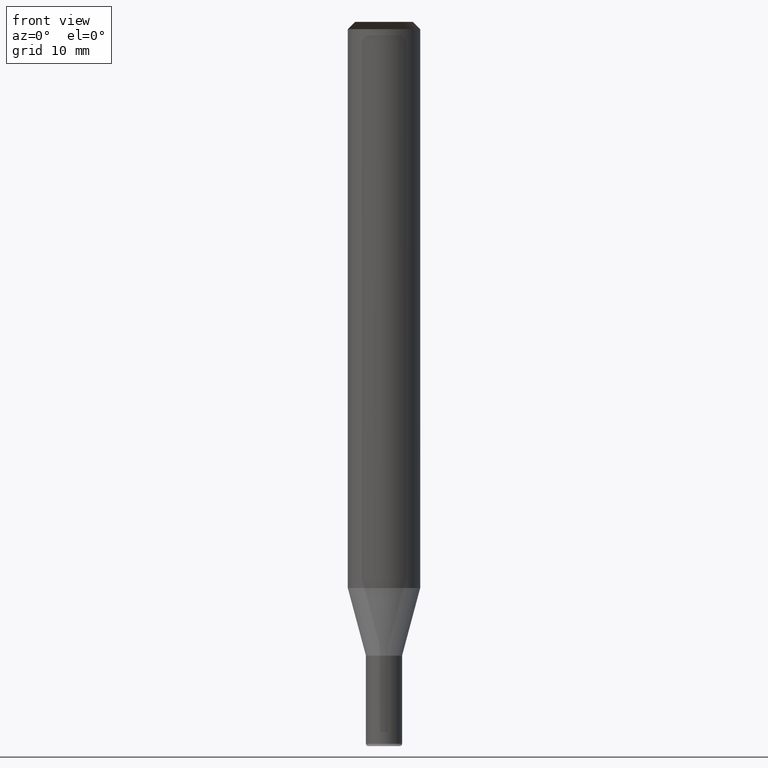
[diagram: clean part render]
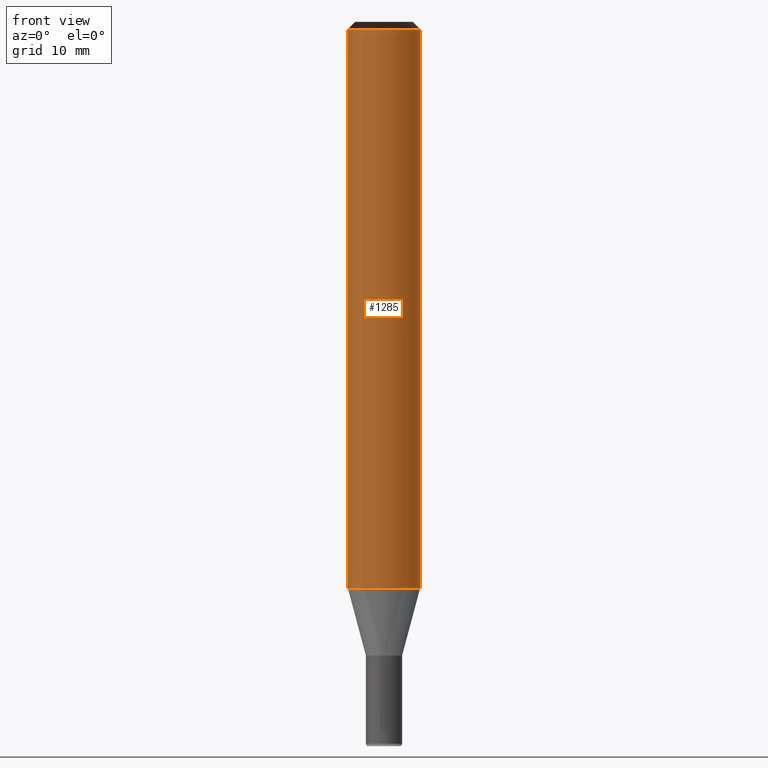
[diagram: same view with one face highlighted and labeled with its STEP entity id]
A machine part, front view. The second image highlights one B-rep face of the part: STEP entity #1285.
In plain terms, the highlighted face is a freeform B-spline surface patch.
Its self-contained STEP definition (entity closure, byte-faithful):
#956=CARTESIAN_POINT('',(3.0,0.0,-0.0));
#960=CARTESIAN_POINT('',(-3.0,0.0,-0.0));
#961=CARTESIAN_POINT('',(3.0,0.0,46.301923788647));
#965=CARTESIAN_POINT('',(-3.0,0.0,46.301923788647));
#972=CARTESIAN_POINT('',(-3.0,-3.0,-0.0));
#973=CARTESIAN_POINT('',(0.0,-3.0,-0.0));
#974=CARTESIAN_POINT('',(3.0,-3.0,-0.0));
#975=CARTESIAN_POINT('',(-3.0,-3.0,46.301923788647));
#976=CARTESIAN_POINT('',(0.0,-3.0,46.301923788647));
#977=CARTESIAN_POINT('',(3.0,-3.0,46.301923788647));
#1266=(
BOUNDED_SURFACE()
B_SPLINE_SURFACE(1,2,(
(#960,#972,#973,#974,#956),
(#965,#975,#976,#977,#961)
), .UNSPECIFIED.,.F.,.F.,.F.)
B_SPLINE_SURFACE_WITH_KNOTS((2,2),(3,2,3),(
0.0,1.0),(
0.0,0.5,1.0), .UNSPECIFIED.)
GEOMETRIC_REPRESENTATION_ITEM()
RATIONAL_B_SPLINE_SURFACE(((1.0,0.707106781187,1.0,0.707106781187,1.0),
(1.0,0.707106781187,1.0,0.707106781187,1.0)
))
REPRESENTATION_ITEM('')
SURFACE()
);
#1267=(
BOUNDED_CURVE()
B_SPLINE_CURVE(1,(#965,#960),.UNSPECIFIED.,.F.,.F.)
B_SPLINE_CURVE_WITH_KNOTS((2,2),
(0.0,1.0),.UNSPECIFIED.)
CURVE()
GEOMETRIC_REPRESENTATION_ITEM()
RATIONAL_B_SPLINE_CURVE((1.0,1.0))
REPRESENTATION_ITEM('')
);
#1268=(
BOUNDED_CURVE()
B_SPLINE_CURVE(2,(#960,#972,#973,#974,#956),.UNSPECIFIED.,.F.,.F.)
B_SPLINE_CURVE_WITH_KNOTS((3,2,3),
(0.0,0.5,1.0),.UNSPECIFIED.)
CURVE()
GEOMETRIC_REPRESENTATION_ITEM()
RATIONAL_B_SPLINE_CURVE((1.0,0.707106781187,1.0,0.707106781187,1.0))
REPRESENTATION_ITEM('')
);
#1269=(
BOUNDED_CURVE()
B_SPLINE_CURVE(1,(#956,#961),.UNSPECIFIED.,.F.,.F.)
B_SPLINE_CURVE_WITH_KNOTS((2,2),
(0.0,1.0),.UNSPECIFIED.)
CURVE()
GEOMETRIC_REPRESENTATION_ITEM()
RATIONAL_B_SPLINE_CURVE((1.0,1.0))
REPRESENTATION_ITEM('')
);
#1270=(
BOUNDED_CURVE()
B_SPLINE_CURVE(2,(#961,#977,#976,#975,#965),.UNSPECIFIED.,.F.,.F.)
B_SPLINE_CURVE_WITH_KNOTS((3,2,3),
(0.0,0.5,1.0),.UNSPECIFIED.)
CURVE()
GEOMETRIC_REPRESENTATION_ITEM()
RATIONAL_B_SPLINE_CURVE((1.0,0.707106781187,1.0,0.707106781187,1.0))
REPRESENTATION_ITEM('')
);
#1271=VERTEX_POINT('',#956);
#1272=VERTEX_POINT('',#960);
#1273=VERTEX_POINT('',#961);
#1274=VERTEX_POINT('',#965);
#1275=EDGE_CURVE('',#1274,#1272,#1267,.T.);
#1276=EDGE_CURVE('',#1272,#1271,#1268,.T.);
#1277=EDGE_CURVE('',#1271,#1273,#1269,.T.);
#1278=EDGE_CURVE('',#1273,#1274,#1270,.T.);
#1279=ORIENTED_EDGE('',*,*,#1275,.T.);
#1280=ORIENTED_EDGE('',*,*,#1276,.T.);
#1281=ORIENTED_EDGE('',*,*,#1277,.T.);
#1282=ORIENTED_EDGE('',*,*,#1278,.T.);
#1283=EDGE_LOOP('',(#1279,#1280,#1281,#1282));
#1284=FACE_OUTER_BOUND('',#1283,.T.);
#1285=ADVANCED_FACE('',(#1284),#1266,.T.);